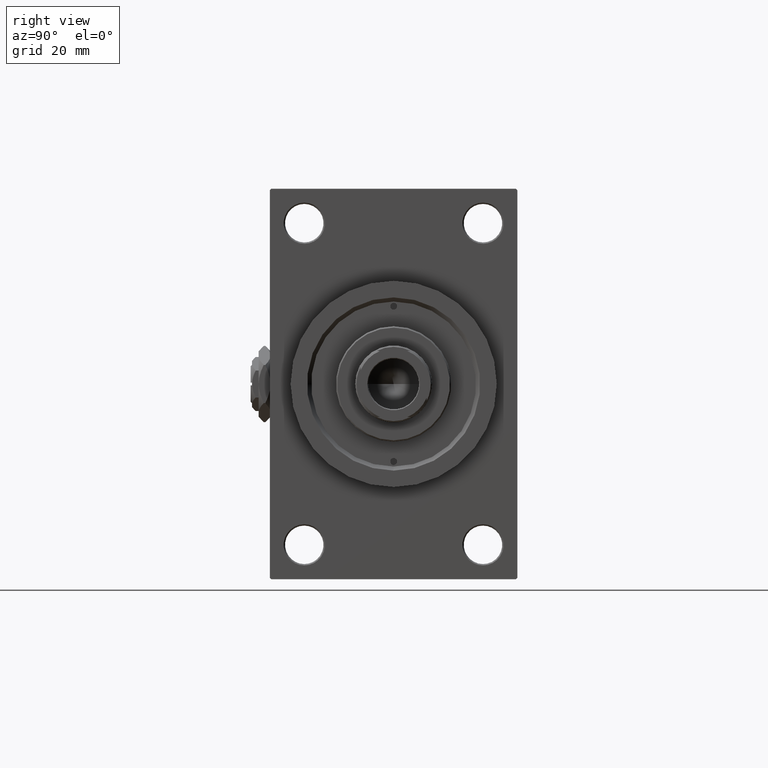
[diagram: clean part render]
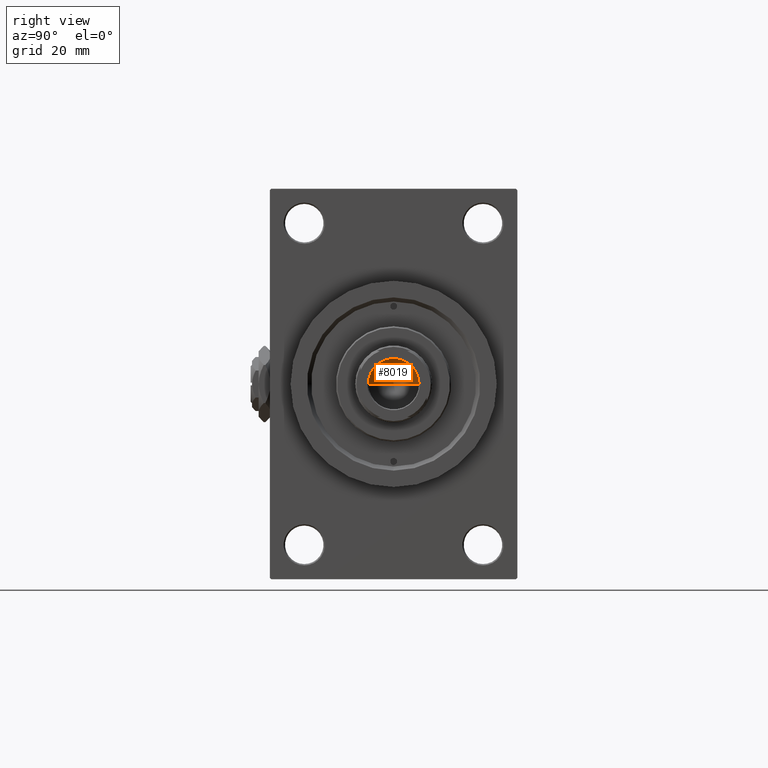
[diagram: same view with one face highlighted and labeled with its STEP entity id]
A machine part, right view. The second image highlights one B-rep face of the part: STEP entity #8019.
In plain terms, the highlighted conical surface has half-angle 59 deg.
Its self-contained STEP definition (entity closure, byte-faithful):
#1212 = CARTESIAN_POINT ( 'NONE',  ( 0.000000000000000000, 0.000000000000000000, 114.9999999999999858 ) ) ;
#1841 = EDGE_LOOP ( 'NONE', ( #4438, #19076, #38425 ) ) ;
#2200 = DIRECTION ( 'NONE',  ( -0.000000000000000000, -0.000000000000000000, 1.000000000000000000 ) ) ;
#3498 = AXIS2_PLACEMENT_3D ( 'NONE', #20749, #24244, #20021 ) ;
#4438 = ORIENTED_EDGE ( 'NONE', *, *, #35251, .F. ) ;
#6387 = VECTOR ( 'NONE', #12868, 1000.000000000000000 ) ;
#8019 = ADVANCED_FACE ( 'NONE', ( #31749 ), #41051, .F. ) ;
#12868 = DIRECTION ( 'NONE',  ( 0.8571673007021117785, 0.000000000000000000, 0.5150380749100550437 ) ) ;
#13105 = CARTESIAN_POINT ( 'NONE',  ( 9.249999999999992895, 0.000000000000000000, 114.9999999999999858 ) ) ;
#13742 = CARTESIAN_POINT ( 'NONE',  ( -9.249999999999992895, 1.132798289211300712E-15, 114.9999999999999858 ) ) ;
#15940 = EDGE_CURVE ( 'NONE', #39165, #37923, #16558, .T. ) ;
#16558 = CIRCLE ( 'NONE', #24524, 9.249999999999992895 ) ;
#16722 = DIRECTION ( 'NONE',  ( 1.000000000000000000, 0.000000000000000000, 0.000000000000000000 ) ) ;
#17757 = LINE ( 'NONE', #13742, #38007 ) ;
#19076 = ORIENTED_EDGE ( 'NONE', *, *, #21162, .T. ) ;
#20021 = DIRECTION ( 'NONE',  ( 1.000000000000000000, 0.000000000000000000, 0.000000000000000000 ) ) ;
#20749 = CARTESIAN_POINT ( 'NONE',  ( 0.000000000000000000, 0.000000000000000000, 114.9999999999999858 ) ) ;
#21162 = EDGE_CURVE ( 'NONE', #45155, #39165, #17757, .T. ) ;
#24244 = DIRECTION ( 'NONE',  ( -0.000000000000000000, -0.000000000000000000, 1.000000000000000000 ) ) ;
#24524 = AXIS2_PLACEMENT_3D ( 'NONE', #1212, #2200, #16722 ) ;
#26488 = CARTESIAN_POINT ( 'NONE',  ( -9.769621978240258809E-15, 0.000000000000000000, 109.4420392739950501 ) ) ;
#27603 = LINE ( 'NONE', #13105, #6387 ) ;
#31749 = FACE_OUTER_BOUND ( 'NONE', #1841, .T. ) ;
#35251 = EDGE_CURVE ( 'NONE', #45155, #37923, #27603, .T. ) ;
#37923 = VERTEX_POINT ( 'NONE', #49210 ) ;
#38007 = VECTOR ( 'NONE', #48282, 1000.000000000000000 ) ;
#38425 = ORIENTED_EDGE ( 'NONE', *, *, #15940, .T. ) ;
#39165 = VERTEX_POINT ( 'NONE', #42139 ) ;
#41051 = CONICAL_SURFACE ( 'NONE', #3498, 9.249999999999992895, 1.029744258676653423 ) ;
#42139 = CARTESIAN_POINT ( 'NONE',  ( -9.249999999999992895, 1.132798289211300712E-15, 114.9999999999999858 ) ) ;
#45155 = VERTEX_POINT ( 'NONE', #26488 ) ;
#48282 = DIRECTION ( 'NONE',  ( -0.8571673007021117785, 1.049727191138617956E-16, 0.5150380749100550437 ) ) ;
#49210 = CARTESIAN_POINT ( 'NONE',  ( 9.249999999999992895, 0.000000000000000000, 114.9999999999999858 ) ) ;